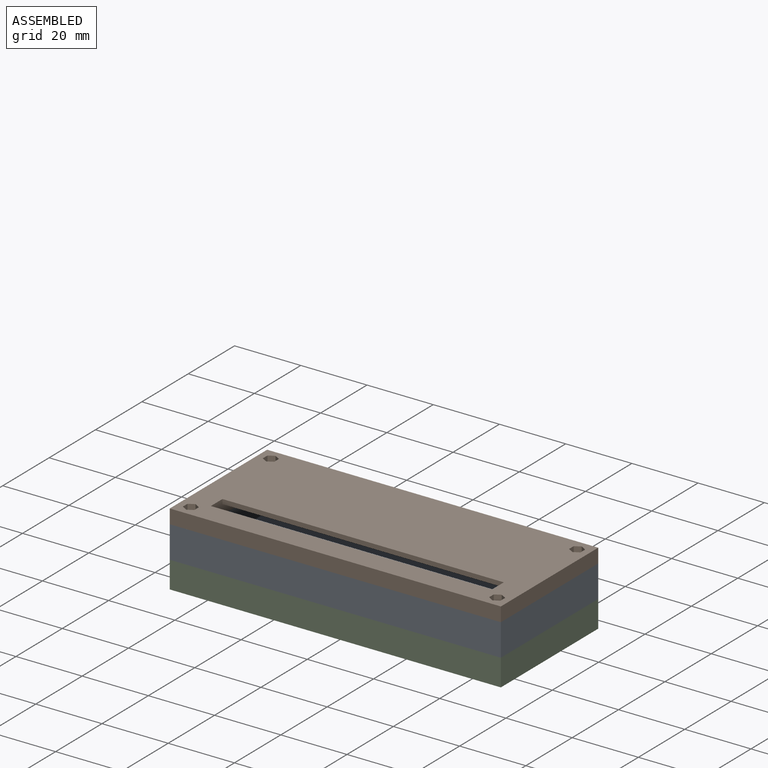
[diagram: assembled view]
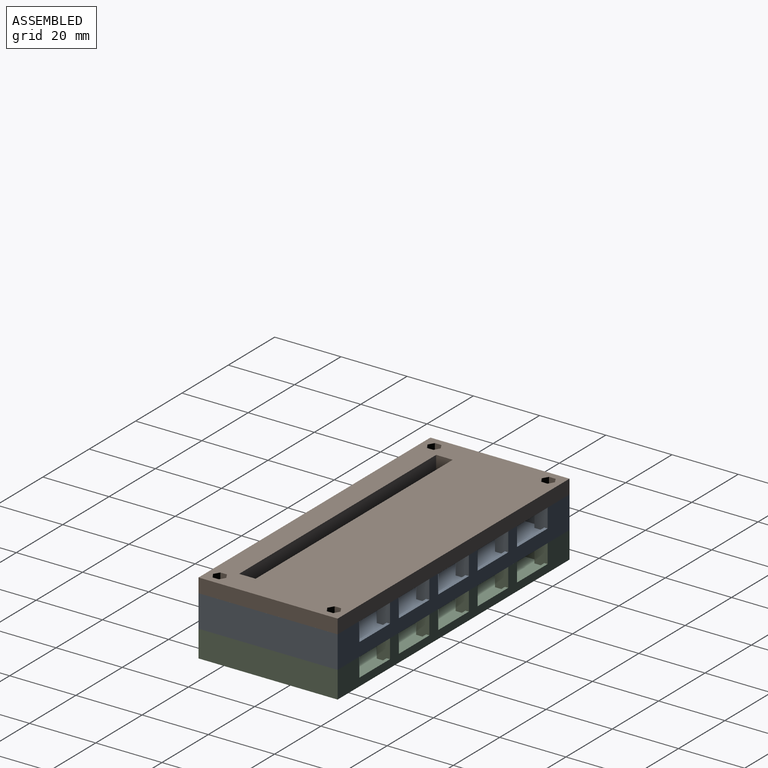
[diagram: assembled view, second angle]
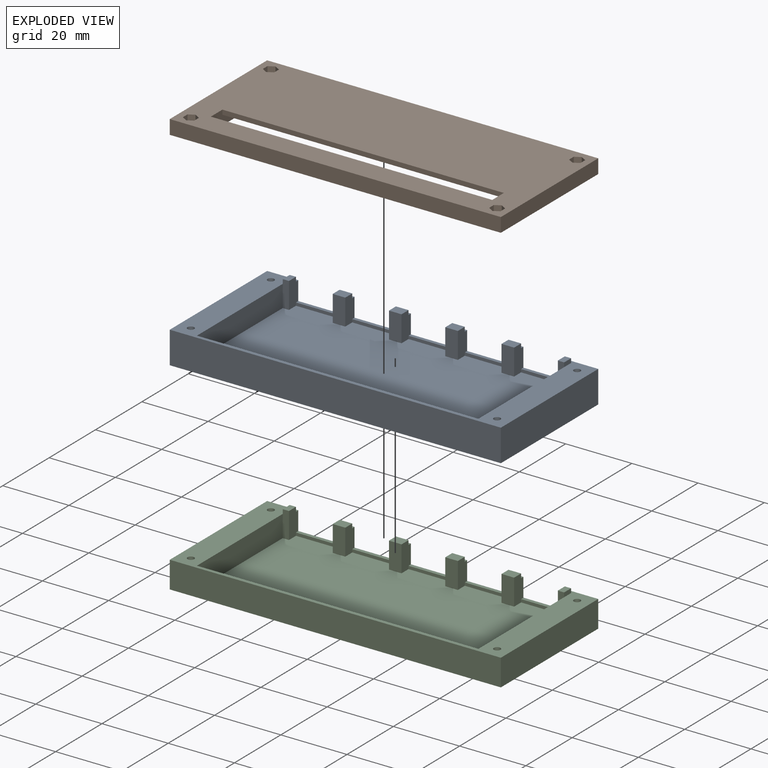
[diagram: exploded view]
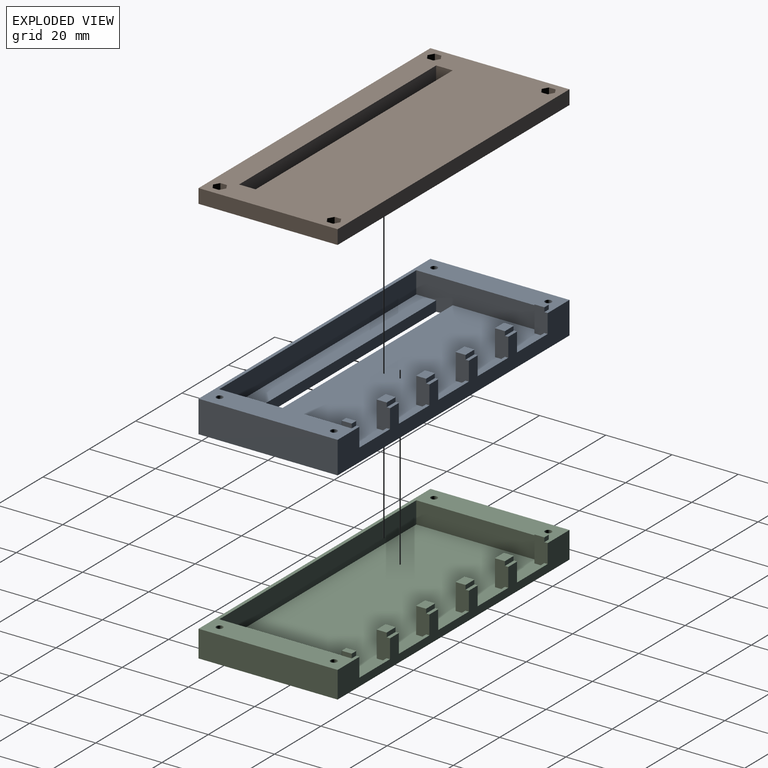
[diagram: exploded view, second angle]
ASSEMBLY  parts=3 mates=2
PART A: 63 faces, bbox 100x42x11 mm
  f0: plane 40x9.7mm, normal (-1,0,0), area 306.1mm2, adj f1,f2,f4,f11,f14,f15,f17,f19
  f1: plane 85x1.6mm, normal (0,-1,0), area 136mm2, adj f0,f3,f15,f62
  f2: plane 85x29mm, normal (0,0,-1), area 2408mm2, adj f0,f3,f4,f16,f18,f20,f21,f23
  f3: plane 40x9.7mm, normal (1,0,0), area 306.1mm2, adj f1,f2,f4,f11,f14,f15,f17,f19
  f4: plane 85x1.5mm, normal (0,-1,0), area 127.5mm2, adj f0,f2,f3,f62
  f5: plane 100x9.7mm, normal (0,-1,0), area 970mm2, adj f6,f12,f15,f19
  f6: plane 42x9.7mm, normal (1,0,0), area 407.4mm2, adj f5,f7,f15,f19
  f7: plane 100x9.7mm, normal (0,1,0), area 593.8mm2, adj f6,f12,f15,f16,f18,f19,f20,f21
  f8: cylinder r=1mm len=9.7mm, axis (0,0,-1), area 60.9mm2, adj f15,f19
  f9: cylinder r=1mm len=9.7mm, axis (0,0,-1), area 60.9mm2, adj f15,f19
  f10: cylinder r=1mm len=9.7mm, axis (0,0,-1), area 60.9mm2, adj f15,f19
  f11: plane 85x3.1mm, normal (0,1,0), area 263.5mm2, adj f0,f3,f14,f15
  f12: plane 42x9.7mm, normal (-1,0,0), area 407.4mm2, adj f5,f7,f15,f19
  f13: cylinder r=1mm len=9.7mm, axis (0,0,-1), area 60.9mm2, adj f15,f19
  f14: plane 85x6mm, normal (0,0,-1), area 510mm2, adj f0,f3,f11,f17
  f15: plane 100x42mm, normal (0,0,1), area 1297.4mm2, adj f0,f1,f3,f5,f6,f7,f8,f9
  f16: plane 7.9x4mm, normal (-1,0,0), area 29.4mm2, adj f2,f7,f19,f32,f34,f35,f52,f53
  f17: plane 85x6.6mm, normal (0,1,0), area 561mm2, adj f0,f3,f14,f19
  f18: plane 7.9x4mm, normal (1,0,0), area 29.4mm2, adj f2,f7,f19,f36,f38,f39,f54,f55
  f19: plane 100x42mm, normal (0,0,-1), area 706.2mm2, adj f0,f3,f5,f6,f7,f8,f9,f10
  f20: plane 7.9x4mm, normal (-1,0,0), area 29.4mm2, adj f2,f7,f22,f40,f41,f42,f54,f55
  f21: plane 7.9x4mm, normal (1,0,0), area 29.4mm2, adj f2,f7,f22,f40,f41,f42,f56,f57
  f22: plane 3.8x1mm, normal (0,0,-1), area 3.8mm2, adj f7,f20,f21,f40
  f23: plane 7.9x4mm, normal (-1,0,0), area 29.4mm2, adj f2,f7,f25,f43,f44,f45,f60,f61
  f24: plane 7.9x4mm, normal (1,0,0), area 29.4mm2, adj f2,f7,f25,f43,f44,f45,f52,f53
  f25: plane 3.8x1mm, normal (0,0,-1), area 3.8mm2, adj f7,f23,f24,f43
  f26: plane 7.9x4mm, normal (-1,0,0), area 29.4mm2, adj f2,f7,f28,f46,f47,f48,f56,f57
  f27: plane 7.9x4mm, normal (1,0,0), area 29.4mm2, adj f2,f7,f28,f46,f47,f48,f58,f59
  f28: plane 3.8x1mm, normal (0,0,-1), area 3.8mm2, adj f7,f26,f27,f46
  f29: plane 7.9x4mm, normal (-1,0,0), area 29.4mm2, adj f2,f7,f31,f49,f50,f51,f58,f59
  f30: plane 7.9x4mm, normal (1,0,0), area 29.4mm2, adj f2,f7,f31,f49,f50,f51,f60,f61
  f31: plane 3.8x1mm, normal (0,0,-1), area 3.8mm2, adj f7,f29,f30,f49
  f32: plane 1.9x1.3mm, normal (0,1,0), area 2.5mm2, adj f16,f19,f33,f35
  f33: plane 3x1.3mm, normal (1,0,0), area 3.9mm2, adj f19,f32,f34,f35
  f34: plane 7.9x1.9mm, normal (0,-1,0), area 15mm2, adj f0,f2,f16,f33,f35
  f35: plane 3x1.9mm, normal (0,0,-1), area 5.7mm2, adj f16,f32,f33,f34
  f36: plane 1.9x1.3mm, normal (0,1,0), area 2.5mm2, adj f18,f19,f37,f39
  f37: plane 3x1.3mm, normal (-1,0,0), area 3.9mm2, adj f19,f36,f38,f39
  f38: plane 7.9x1.9mm, normal (0,-1,0), area 15mm2, adj f2,f3,f18,f37,f39
  f39: plane 3x1.9mm, normal (0,0,-1), area 5.7mm2, adj f18,f36,f37,f38
  f40: plane 3.8x1.3mm, normal (0,1,0), area 4.9mm2, adj f20,f21,f22,f42
  f41: plane 7.9x3.8mm, normal (0,-1,0), area 30mm2, adj f2,f20,f21,f42
  f42: plane 3.8x3mm, normal (0,0,-1), area 11.4mm2, adj f20,f21,f40,f41
  f43: plane 3.8x1.3mm, normal (0,1,0), area 4.9mm2, adj f23,f24,f25,f45
  f44: plane 7.9x3.8mm, normal (0,-1,0), area 30mm2, adj f2,f23,f24,f45
  f45: plane 3.8x3mm, normal (0,0,-1), area 11.4mm2, adj f23,f24,f43,f44
  f46: plane 3.8x1.3mm, normal (0,1,0), area 4.9mm2, adj f26,f27,f28,f48
  f47: plane 7.9x3.8mm, normal (0,-1,0), area 30mm2, adj f2,f26,f27,f48
  f48: plane 3.8x3mm, normal (0,0,-1), area 11.4mm2, adj f26,f27,f46,f47
  f49: plane 3.8x1.3mm, normal (0,1,0), area 4.9mm2, adj f29,f30,f31,f51
  f50: plane 7.9x3.8mm, normal (0,-1,0), area 30mm2, adj f2,f29,f30,f51
  f51: plane 3.8x3mm, normal (0,0,-1), area 11.4mm2, adj f29,f30,f49,f50
  f52: plane 13.2x0.9mm, normal (0,-1,0), area 11.9mm2, adj f2,f16,f24,f53
  f53: plane 13.2x1mm, normal (0,0,-1), area 13.2mm2, adj f7,f16,f24,f52
  f54: plane 13.2x0.9mm, normal (0,-1,0), area 11.9mm2, adj f2,f18,f20,f55
  f55: plane 13.2x1mm, normal (0,0,-1), area 13.2mm2, adj f7,f18,f20,f54
  f56: plane 13.2x0.9mm, normal (0,-1,0), area 11.9mm2, adj f2,f21,f26,f57
  f57: plane 13.2x1mm, normal (0,0,-1), area 13.2mm2, adj f7,f21,f26,f56
  f58: plane 13.2x0.9mm, normal (0,-1,0), area 11.9mm2, adj f2,f27,f29,f59
  f59: plane 13.2x1mm, normal (0,0,-1), area 13.2mm2, adj f7,f27,f29,f58
  f60: plane 13.2x0.9mm, normal (0,-1,0), area 11.9mm2, adj f2,f23,f30,f61
  f61: plane 13.2x1mm, normal (0,0,-1), area 13.2mm2, adj f7,f23,f30,f60
  f62: plane 85x29mm, normal (0,0,1), area 2465mm2, adj f0,f1,f3,f4
PART B: 44 faces, bbox 100x42x4.3 mm
  f0: plane 100x42mm, normal (0,0,-1), area 3733.4mm2, adj f1,f2,f3,f4,f5,f6,f10,f11
  f1: plane 34x4.3mm, normal (1,0,0), area 105.6mm2, adj f0,f2,f10,f13,f14,f15
  f2: plane 85x1.4mm, normal (0,-1,0), area 119mm2, adj f0,f1,f3,f13
  f3: plane 34x4.3mm, normal (-1,0,0), area 105.6mm2, adj f0,f2,f10,f13,f14,f15
  f4: plane 100x4.3mm, normal (0,-1,0), area 430mm2, adj f0,f5,f11,f15
  f5: plane 42x4.3mm, normal (1,0,0), area 180.6mm2, adj f0,f4,f6,f15
  f6: plane 100x4.3mm, normal (0,1,0), area 430mm2, adj f0,f5,f11,f15
  f7: cylinder r=1mm len=2.3mm, axis (0,0,-1), area 14.5mm2, adj f15,f36
  f8: cylinder r=1mm len=2.3mm, axis (0,0,-1), area 14.5mm2, adj f15,f43
  f9: cylinder r=1mm len=2.3mm, axis (0,0,-1), area 14.5mm2, adj f15,f22
  f10: plane 85x4.3mm, normal (0,1,0), area 365.5mm2, adj f0,f1,f3,f15
  f11: plane 42x4.3mm, normal (-1,0,0), area 180.6mm2, adj f0,f4,f6,f15
  f12: cylinder r=1mm len=2.3mm, axis (0,0,-1), area 14.5mm2, adj f15,f29
  f13: plane 85x29mm, normal (0,0,1), area 2465mm2, adj f1,f2,f3,f14
  f14: plane 85x2.9mm, normal (0,-1,0), area 246.5mm2, adj f1,f3,f13,f15
  f15: plane 100x42mm, normal (0,0,1), area 1297.4mm2, adj f1,f3,f4,f5,f6,f7,f8,f9
  f16: plane 2x1.73mm, normal (-0.5,0.87,0), area 4mm2, adj f0,f17,f21,f22
  f17: plane 2x2mm, normal (-1,0,0), area 4mm2, adj f0,f16,f18,f22
  f18: plane 2x1.73mm, normal (-0.5,-0.87,0), area 4mm2, adj f0,f17,f19,f22
  f19: plane 2x1.73mm, normal (0.5,-0.87,0), area 4mm2, adj f0,f18,f20,f22
  f20: plane 2x2mm, normal (1,0,0), area 4mm2, adj f0,f19,f21,f22
  f21: plane 2x1.73mm, normal (0.5,0.87,0), area 4mm2, adj f0,f16,f20,f22
  f22: plane 4x3.46mm, normal (0,0,-1), area 7.3mm2, adj f9,f16,f17,f18,f19,f20,f21
  f23: plane 2x1.73mm, normal (0.5,-0.87,0), area 4mm2, adj f0,f24,f28,f29
  f24: plane 2x2mm, normal (1,0,0), area 4mm2, adj f0,f23,f25,f29
  f25: plane 2x1.73mm, normal (0.5,0.87,0), area 4mm2, adj f0,f24,f26,f29
  f26: plane 2x1.73mm, normal (-0.5,0.87,0), area 4mm2, adj f0,f25,f27,f29
  f27: plane 2x2mm, normal (-1,0,0), area 4mm2, adj f0,f26,f28,f29
  f28: plane 2x1.73mm, normal (-0.5,-0.87,0), area 4mm2, adj f0,f23,f27,f29
  f29: plane 4x3.46mm, normal (0,0,-1), area 7.3mm2, adj f12,f23,f24,f25,f26,f27,f28
  f30: plane 2x1.73mm, normal (-0.5,0.87,0), area 4mm2, adj f0,f31,f35,f36
  f31: plane 2x2mm, normal (-1,0,0), area 4mm2, adj f0,f30,f32,f36
  f32: plane 2x1.73mm, normal (-0.5,-0.87,0), area 4mm2, adj f0,f31,f33,f36
  f33: plane 2x1.73mm, normal (0.5,-0.87,0), area 4mm2, adj f0,f32,f34,f36
  f34: plane 2x2mm, normal (1,0,0), area 4mm2, adj f0,f33,f35,f36
  f35: plane 2x1.73mm, normal (0.5,0.87,0), area 4mm2, adj f0,f30,f34,f36
  f36: plane 4x3.46mm, normal (0,0,-1), area 7.3mm2, adj f7,f30,f31,f32,f33,f34,f35
  f37: plane 2x1.73mm, normal (0.5,-0.87,0), area 4mm2, adj f0,f38,f42,f43
  f38: plane 2x2mm, normal (1,0,0), area 4mm2, adj f0,f37,f39,f43
  f39: plane 2x1.73mm, normal (0.5,0.87,0), area 4mm2, adj f0,f38,f40,f43
  f40: plane 2x1.73mm, normal (-0.5,0.87,0), area 4mm2, adj f0,f39,f41,f43
  f41: plane 2x2mm, normal (-1,0,0), area 4mm2, adj f0,f40,f42,f43
  f42: plane 2x1.73mm, normal (-0.5,-0.87,0), area 4mm2, adj f0,f37,f41,f43
  f43: plane 4x3.46mm, normal (0,0,-1), area 7.3mm2, adj f8,f37,f38,f39,f40,f41,f42
PART C: 66 faces, bbox 100x42x9.4 mm
  f0: plane 100x8.1mm, normal (0,1,0), area 433.8mm2, adj f1,f3,f5,f7,f8,f17,f18,f20
  f1: plane 42x8.1mm, normal (-1,0,0), area 340.2mm2, adj f0,f2,f5,f17
  f2: plane 100x8.1mm, normal (0,-1,0), area 810mm2, adj f1,f3,f5,f17
  f3: plane 42x8.1mm, normal (1,0,0), area 340.2mm2, adj f0,f2,f5,f17
  f4: plane 85x40mm, normal (0,0,1), area 3343mm2, adj f6,f7,f8,f9,f10,f11,f15,f18
  f5: plane 100x42mm, normal (0,0,-1), area 4149.7mm2, adj f0,f1,f2,f3,f34,f35,f36,f37
  f6: plane 7.9x1.9mm, normal (0,-1,0), area 15mm2, adj f4,f7,f15,f56,f57
  f7: plane 7.9x4mm, normal (1,0,0), area 29.4mm2, adj f0,f4,f6,f17,f40,f41,f55,f57
  f8: plane 7.9x4mm, normal (-1,0,0), area 29.4mm2, adj f0,f4,f9,f17,f46,f47,f53,f54
  f9: plane 7.9x1.9mm, normal (0,-1,0), area 15mm2, adj f4,f8,f10,f52,f54
  f10: plane 37x6.6mm, normal (-1,0,0), area 244.2mm2, adj f4,f9,f11,f17
  f11: plane 85x6.6mm, normal (0,1,0), area 561mm2, adj f4,f10,f15,f17
  f12: cylinder r=1mm len=6.1mm, axis (0,0,-1), area 38.3mm2, adj f17,f48
  f13: cylinder r=1mm len=6.1mm, axis (0,0,-1), area 38.3mm2, adj f17,f51
  f14: cylinder r=1mm len=6.1mm, axis (0,0,-1), area 38.3mm2, adj f17,f50
  f15: plane 37x6.6mm, normal (1,0,0), area 244.2mm2, adj f4,f6,f11,f17
  f16: cylinder r=1mm len=6.1mm, axis (0,0,-1), area 38.3mm2, adj f17,f49
  f17: plane 100x42mm, normal (0,0,1), area 706.2mm2, adj f0,f1,f2,f3,f7,f8,f10,f11
  f18: plane 7.9x4mm, normal (-1,0,0), area 29.4mm2, adj f0,f4,f19,f21,f40,f41,f60,f61
  f19: plane 7.9x3.8mm, normal (0,-1,0), area 30mm2, adj f4,f18,f20,f61
  f20: plane 7.9x4mm, normal (1,0,0), area 29.4mm2, adj f0,f4,f19,f21,f38,f39,f60,f61
  f21: plane 3.8x1mm, normal (0,0,1), area 3.8mm2, adj f0,f18,f20,f60
  f22: plane 7.9x4mm, normal (-1,0,0), area 29.4mm2, adj f0,f4,f23,f25,f38,f39,f64,f65
  f23: plane 7.9x3.8mm, normal (0,-1,0), area 30mm2, adj f4,f22,f24,f65
  f24: plane 7.9x4mm, normal (1,0,0), area 29.4mm2, adj f0,f4,f23,f25,f42,f43,f64,f65
  f25: plane 3.8x1mm, normal (0,0,1), area 3.8mm2, adj f0,f22,f24,f64
  f26: plane 7.9x4mm, normal (-1,0,0), area 29.4mm2, adj f0,f4,f27,f29,f42,f43,f62,f63
  f27: plane 7.9x3.8mm, normal (0,-1,0), area 30mm2, adj f4,f26,f28,f63
  f28: plane 7.9x4mm, normal (1,0,0), area 29.4mm2, adj f0,f4,f27,f29,f44,f45,f62,f63
  f29: plane 3.8x1mm, normal (0,0,1), area 3.8mm2, adj f0,f26,f28,f62
  f30: plane 7.9x4mm, normal (-1,0,0), area 29.4mm2, adj f0,f4,f31,f33,f44,f45,f58,f59
  f31: plane 7.9x3.8mm, normal (0,-1,0), area 30mm2, adj f4,f30,f32,f59
  f32: plane 7.9x4mm, normal (1,0,0), area 29.4mm2, adj f0,f4,f31,f33,f46,f47,f58,f59
  f33: plane 3.8x1mm, normal (0,0,1), area 3.8mm2, adj f0,f30,f32,f58
  f34: cylinder r=2mm len=4mm, axis (0,0,1), area 25.1mm2, adj f5,f51
  f35: cylinder r=2mm len=4mm, axis (0,0,1), area 25.1mm2, adj f5,f50
  f36: cylinder r=2mm len=4mm, axis (0,0,1), area 25.1mm2, adj f5,f49
  f37: cylinder r=2mm len=4mm, axis (0,0,1), area 25.1mm2, adj f5,f48
  f38: plane 13.2x0.9mm, normal (0,-1,0), area 11.9mm2, adj f4,f20,f22,f39
  f39: plane 13.2x1mm, normal (0,0,1), area 13.2mm2, adj f0,f20,f22,f38
  f40: plane 13.2x0.9mm, normal (0,-1,0), area 11.9mm2, adj f4,f7,f18,f41
  f41: plane 13.2x1mm, normal (0,0,1), area 13.2mm2, adj f0,f7,f18,f40
  f42: plane 13.2x0.9mm, normal (0,-1,0), area 11.9mm2, adj f4,f24,f26,f43
  f43: plane 13.2x1mm, normal (0,0,1), area 13.2mm2, adj f0,f24,f26,f42
  f44: plane 13.2x0.9mm, normal (0,-1,0), area 11.9mm2, adj f4,f28,f30,f45
  f45: plane 13.2x1mm, normal (0,0,1), area 13.2mm2, adj f0,f28,f30,f44
  f46: plane 13.2x0.9mm, normal (0,-1,0), area 11.9mm2, adj f4,f8,f32,f47
  f47: plane 13.2x1mm, normal (0,0,1), area 13.2mm2, adj f0,f8,f32,f46
  f48: plane 4x4mm, normal (0,0,-1), area 9.4mm2, adj f12,f37
  f49: plane 4x4mm, normal (0,0,-1), area 9.4mm2, adj f16,f36
  f50: plane 4x4mm, normal (0,0,-1), area 9.4mm2, adj f14,f35
  f51: plane 4x4mm, normal (0,0,-1), area 9.4mm2, adj f13,f34
  f52: plane 3x1.3mm, normal (1,0,0), area 3.9mm2, adj f9,f17,f53,f54
  f53: plane 1.9x1.3mm, normal (0,1,0), area 2.5mm2, adj f8,f17,f52,f54
  f54: plane 3x1.9mm, normal (0,0,1), area 5.7mm2, adj f8,f9,f52,f53
  f55: plane 1.9x1.3mm, normal (0,1,0), area 2.5mm2, adj f7,f17,f56,f57
  f56: plane 3x1.3mm, normal (-1,0,0), area 3.9mm2, adj f6,f17,f55,f57
  f57: plane 3x1.9mm, normal (0,0,1), area 5.7mm2, adj f6,f7,f55,f56
  f58: plane 3.8x1.3mm, normal (0,1,0), area 4.9mm2, adj f30,f32,f33,f59
  f59: plane 3.8x3mm, normal (0,0,1), area 11.4mm2, adj f30,f31,f32,f58
  f60: plane 3.8x1.3mm, normal (0,1,0), area 4.9mm2, adj f18,f20,f21,f61
  f61: plane 3.8x3mm, normal (0,0,1), area 11.4mm2, adj f18,f19,f20,f60
  f62: plane 3.8x1.3mm, normal (0,1,0), area 4.9mm2, adj f26,f28,f29,f63
  f63: plane 3.8x3mm, normal (0,0,1), area 11.4mm2, adj f26,f27,f28,f62
  f64: plane 3.8x1.3mm, normal (0,1,0), area 4.9mm2, adj f22,f24,f25,f65
  f65: plane 3.8x3mm, normal (0,0,1), area 11.4mm2, adj f22,f23,f24,f64
PLACE A rot(axis=(0,1,0),180deg) t=(-12.47,2.34,42.56)mm
PLACE B rot(axis=(0,1,0),180deg) t=(-12.47,2.34,53.46)mm
PLACE C t=(-13.06,-11.89,31.36)mm
MATE fastened C.f12 <-> A.f9  axis (0,0,1) through (33.78,19.59,39.46)mm
MATE fastened B.f9 <-> A.f10  axis (0,0,-1) through (33.78,-14.91,49.16)mm
